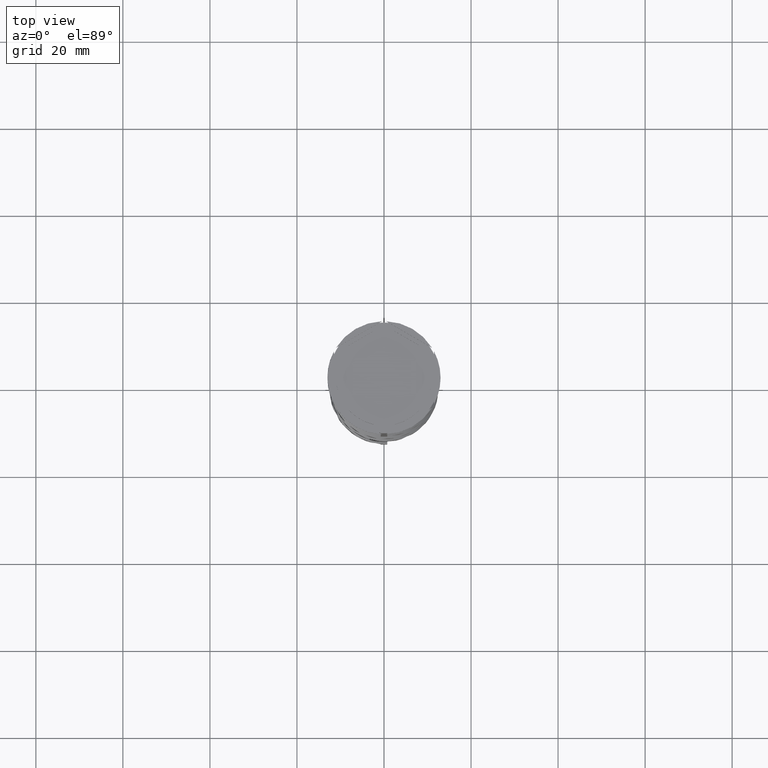
[diagram: clean part render]
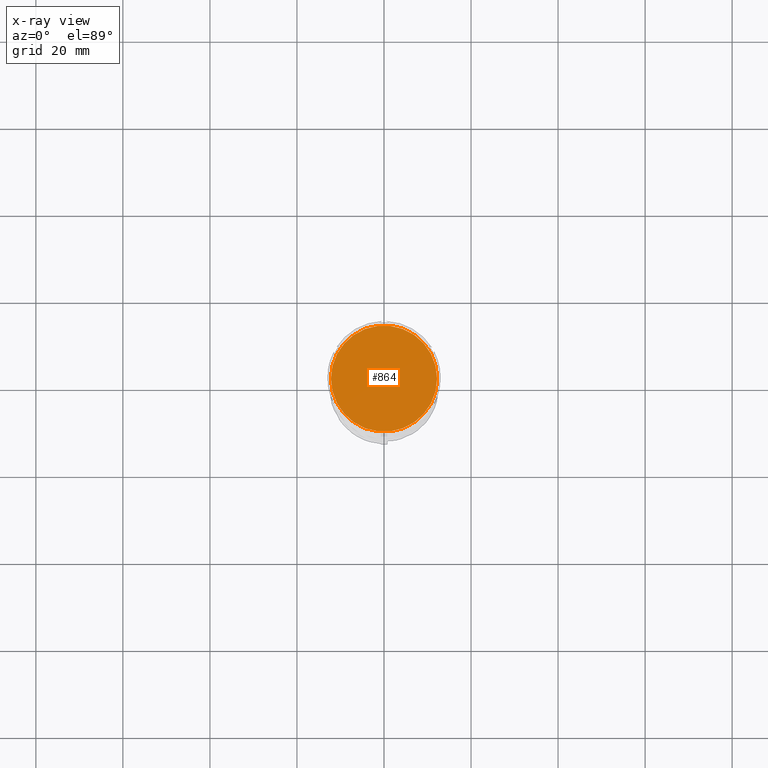
[diagram: x-ray — body ghosted, one internal face saturated and labeled with its STEP entity id]
A machine part, top view, then the same camera in x-ray: the body is ghosted and one INTERNAL B-rep face — a face not visible from any outside direction — is saturated and labeled: STEP entity #864.
In plain terms, the highlighted planar face has unit normal (0, 0, -1).
Its self-contained STEP definition (entity closure, byte-faithful):
#244 = CIRCLE ( 'NONE', #3461, 12.20000000000000639 ) ;
#264 = VERTEX_POINT ( 'NONE', #1323 ) ;
#420 = DIRECTION ( 'NONE',  ( -0.000000000000000000, -0.000000000000000000, 1.000000000000000000 ) ) ;
#821 = DIRECTION ( 'NONE',  ( -1.000000000000000000, 0.000000000000000000, 0.000000000000000000 ) ) ;
#864 = ADVANCED_FACE ( 'NONE', ( #3213 ), #3234, .F. ) ;
#935 = EDGE_CURVE ( 'NONE', #3799, #264, #2040, .T. ) ;
#1323 = CARTESIAN_POINT ( 'NONE',  ( -12.20000000000000639, 0.000000000000000000, -12.00000000000000000 ) ) ;
#1709 = EDGE_LOOP ( 'NONE', ( #1870, #3670 ) ) ;
#1870 = ORIENTED_EDGE ( 'NONE', *, *, #3105, .T. ) ;
#1986 = CARTESIAN_POINT ( 'NONE',  ( 0.000000000000000000, 0.000000000000000000, -12.00000000000000000 ) ) ;
#2040 = CIRCLE ( 'NONE', #3835, 12.20000000000000639 ) ;
#2373 = DIRECTION ( 'NONE',  ( -1.000000000000000000, 0.000000000000000000, 0.000000000000000000 ) ) ;
#2606 = CARTESIAN_POINT ( 'NONE',  ( 0.000000000000000000, 0.000000000000000000, -12.00000000000000000 ) ) ;
#2931 = DIRECTION ( 'NONE',  ( 0.000000000000000000, 0.000000000000000000, -1.000000000000000000 ) ) ;
#2953 = DIRECTION ( 'NONE',  ( -1.000000000000000000, 0.000000000000000000, -0.000000000000000000 ) ) ;
#3105 = EDGE_CURVE ( 'NONE', #264, #3799, #244, .T. ) ;
#3213 = FACE_OUTER_BOUND ( 'NONE', #1709, .T. ) ;
#3234 = PLANE ( 'NONE',  #3310 ) ;
#3310 = AXIS2_PLACEMENT_3D ( 'NONE', #2606, #2931, #2953 ) ;
#3461 = AXIS2_PLACEMENT_3D ( 'NONE', #1986, #3625, #2373 ) ;
#3625 = DIRECTION ( 'NONE',  ( -0.000000000000000000, -0.000000000000000000, 1.000000000000000000 ) ) ;
#3670 = ORIENTED_EDGE ( 'NONE', *, *, #935, .T. ) ;
#3700 = CARTESIAN_POINT ( 'NONE',  ( 0.000000000000000000, 0.000000000000000000, -12.00000000000000000 ) ) ;
#3799 = VERTEX_POINT ( 'NONE', #3916 ) ;
#3835 = AXIS2_PLACEMENT_3D ( 'NONE', #3700, #420, #821 ) ;
#3916 = CARTESIAN_POINT ( 'NONE',  ( 12.20000000000000639, 1.512438796946981880E-15, -12.00000000000000000 ) ) ;